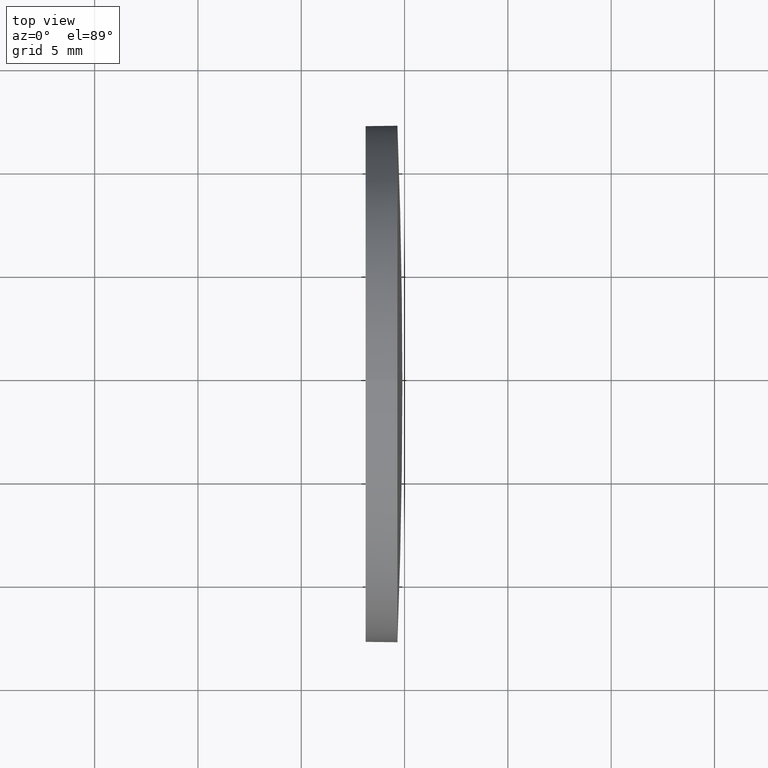
[diagram: clean part render]
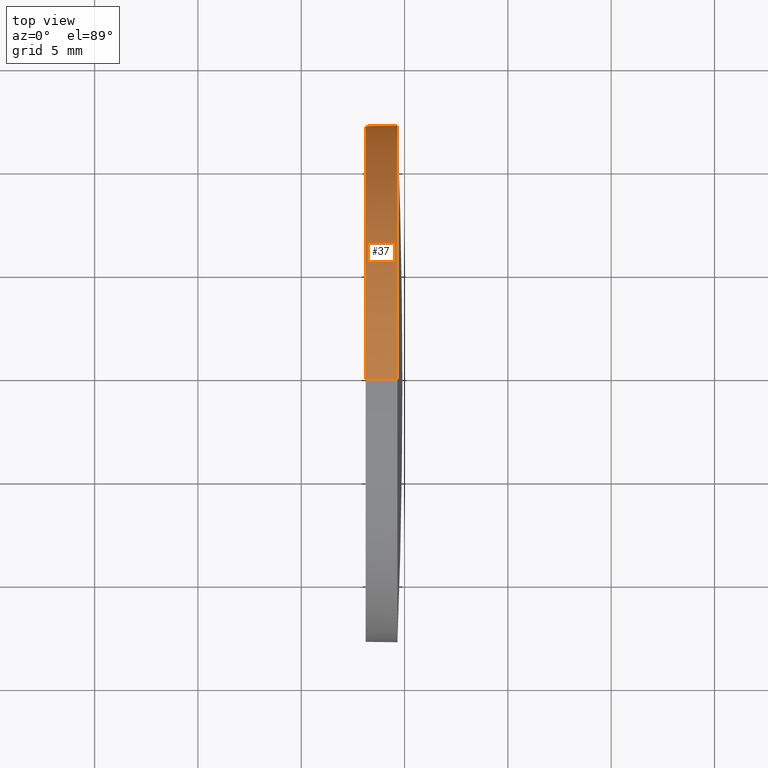
[diagram: same view with one face highlighted and labeled with its STEP entity id]
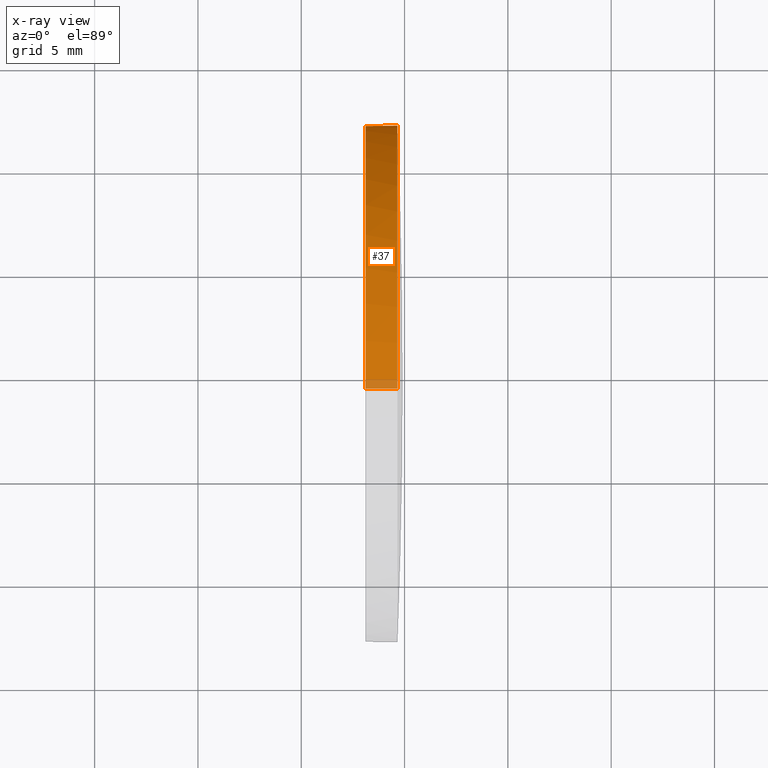
[diagram: x-ray of the same camera — body ghosted, the highlighted face saturated]
A machine part, top view. The second image highlights one B-rep face of the part: STEP entity #37.
The next image is the same camera in x-ray: the body ghosted, the highlighted face saturated — about 3% of this face is hidden behind the body in this view.
In plain terms, the highlighted cylindrical surface (partial cylindrical patch) has radius 12.5 mm, axis along (-1, -0, -0).
Its self-contained STEP definition (entity closure, byte-faithful):
#2 = VERTEX_POINT ( 'NONE', #53 ) ;
#7 = CARTESIAN_POINT ( 'NONE',  ( 483.1155688377202800, 64.61114533818170000, 12.49999999999999600 ) ) ;
#14 = AXIS2_PLACEMENT_3D ( 'NONE', #86, #45, #162 ) ;
#15 = ORIENTED_EDGE ( 'NONE', *, *, #51, .T. ) ;
#17 = CARTESIAN_POINT ( 'NONE',  ( 484.6555688377202400, 64.61114533818170000, 12.49999999999999600 ) ) ;
#18 = CARTESIAN_POINT ( 'NONE',  ( 480.7499529349593100, 64.61114533818170000, -12.49999999999999600 ) ) ;
#24 = EDGE_CURVE ( 'NONE', #170, #2, #151, .T. ) ;
#25 = FACE_OUTER_BOUND ( 'NONE', #165, .T. ) ;
#27 = VECTOR ( 'NONE', #89, 1000.000000000000000 ) ;
#32 = VECTOR ( 'NONE', #173, 1000.000000000000000 ) ;
#37 = ADVANCED_FACE ( 'NONE', ( #25 ), #62, .T. ) ;
#45 = DIRECTION ( 'NONE',  ( -1.000000000000000000, -0.0000000000000000000, -0.0000000000000000000 ) ) ;
#51 = EDGE_CURVE ( 'NONE', #111, #170, #138, .T. ) ;
#53 = CARTESIAN_POINT ( 'NONE',  ( 484.6555688377202400, 64.61114533818170000, -12.49999999999999600 ) ) ;
#60 = DIRECTION ( 'NONE',  ( 0.0000000000000000000, 0.0000000000000000000, 1.000000000000000000 ) ) ;
#62 = CYLINDRICAL_SURFACE ( 'NONE', #139, 12.49999999999999600 ) ;
#65 = DIRECTION ( 'NONE',  ( -1.000000000000000000, -0.0000000000000000000, -0.0000000000000000000 ) ) ;
#68 = DIRECTION ( 'NONE',  ( -1.000000000000000000, -0.0000000000000000000, -0.0000000000000000000 ) ) ;
#69 = DIRECTION ( 'NONE',  ( 0.0000000000000000000, 0.0000000000000000000, 1.000000000000000000 ) ) ;
#75 = CARTESIAN_POINT ( 'NONE',  ( 484.6555688377203000, 77.11114533818225400, 1.530808498934176500E-015 ) ) ;
#78 = EDGE_CURVE ( 'NONE', #111, #154, #102, .T. ) ;
#79 = LINE ( 'NONE', #18, #27 ) ;
#82 = CIRCLE ( 'NONE', #101, 12.49999999999999600 ) ;
#84 = DIRECTION ( 'NONE',  ( 0.0000000000000000000, 0.0000000000000000000, 1.000000000000000000 ) ) ;
#86 = CARTESIAN_POINT ( 'NONE',  ( 484.6555688377202400, 64.61114533818170000, 0.0000000000000000000 ) ) ;
#89 = DIRECTION ( 'NONE',  ( -1.000000000000000000, -0.0000000000000000000, -0.0000000000000000000 ) ) ;
#91 = VERTEX_POINT ( 'NONE', #118 ) ;
#95 = EDGE_CURVE ( 'NONE', #2, #91, #79, .T. ) ;
#100 = CARTESIAN_POINT ( 'NONE',  ( 483.1155688377202800, 64.61114533818170000, 0.0000000000000000000 ) ) ;
#101 = AXIS2_PLACEMENT_3D ( 'NONE', #100, #127, #60 ) ;
#102 = LINE ( 'NONE', #172, #32 ) ;
#103 = ORIENTED_EDGE ( 'NONE', *, *, #113, .F. ) ;
#106 = ORIENTED_EDGE ( 'NONE', *, *, #24, .T. ) ;
#111 = VERTEX_POINT ( 'NONE', #17 ) ;
#113 = EDGE_CURVE ( 'NONE', #154, #91, #82, .T. ) ;
#115 = ORIENTED_EDGE ( 'NONE', *, *, #95, .T. ) ;
#117 = ORIENTED_EDGE ( 'NONE', *, *, #78, .F. ) ;
#118 = CARTESIAN_POINT ( 'NONE',  ( 483.1155688377202800, 64.61114533818170000, -12.49999999999999600 ) ) ;
#123 = AXIS2_PLACEMENT_3D ( 'NONE', #141, #68, #69 ) ;
#127 = DIRECTION ( 'NONE',  ( -1.000000000000000000, -0.0000000000000000000, -0.0000000000000000000 ) ) ;
#138 = CIRCLE ( 'NONE', #14, 12.49999999999999600 ) ;
#139 = AXIS2_PLACEMENT_3D ( 'NONE', #158, #65, #84 ) ;
#141 = CARTESIAN_POINT ( 'NONE',  ( 484.6555688377202400, 64.61114533818170000, 0.0000000000000000000 ) ) ;
#151 = CIRCLE ( 'NONE', #123, 12.49999999999999600 ) ;
#154 = VERTEX_POINT ( 'NONE', #7 ) ;
#158 = CARTESIAN_POINT ( 'NONE',  ( 480.7499529349593100, 64.61114533818170000, 0.0000000000000000000 ) ) ;
#162 = DIRECTION ( 'NONE',  ( 0.0000000000000000000, 0.0000000000000000000, 1.000000000000000000 ) ) ;
#165 = EDGE_LOOP ( 'NONE', ( #106, #115, #103, #117, #15 ) ) ;
#170 = VERTEX_POINT ( 'NONE', #75 ) ;
#172 = CARTESIAN_POINT ( 'NONE',  ( 480.7499529349593100, 64.61114533818170000, 12.49999999999999600 ) ) ;
#173 = DIRECTION ( 'NONE',  ( -1.000000000000000000, -0.0000000000000000000, -0.0000000000000000000 ) ) ;